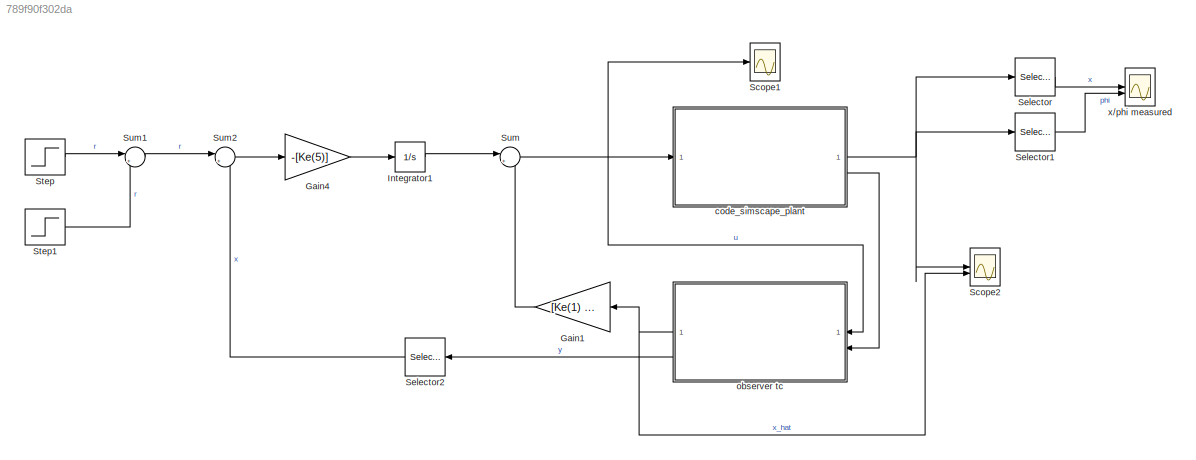
MODEL slx_789f90f302da
KIND model
CONFIG AbsTol = auto
CONFIG EnableMultiTasking = off
CONFIG FixedStep = auto
CONFIG MaxStep = ts
CONFIG MinStep = auto
CONFIG RelTol = 1e-3
CONFIG SampleTimeConstraint = Unconstrained
CONFIG SolverName = daessc
CONFIG StartTime = 0.0
CONFIG StopTime = simlength
BLOCK [Gain] Gain1
  Gain = [Ke(1) Ke(2) Ke(3) Ke(4)]
  Multiplication = Matrix(K*u)
  NameLocation = top
BLOCK [Gain] Gain4
  Gain = -[Ke(5)]
  NameLocation = top
BLOCK [Integrator] Integrator1
BLOCK [Scope] Scope1
  ActiveDisplayYMaximum = 1758.92471
  ActiveDisplayYMinimum = -664.55254
  DataLoggingVariableName = ScopeData1
  Floating = off
  GraphicalSettings = {"Style":{"BackgroundColor":[0.12941176470588237,0.12941176470588237,0.12941176470588237],"AxesColor":[0.07058823529411765,0.07058823529411765,0.07058823529411765],"LabelsColor":[0.8509803921568627,0.8509803921568627,0.8509803921568627],"PreserveColors":false,"Visible":[true],"LineStyle":["-"],"LineWidth":[3],"BarWidth":[0.9],"LineColor":["auto"],"LineFaceAlpha":[1],"LineEdgeAlpha":[1],"Marker":["...<+1935ch>
  MultipleDisplayCache = [{"MaxYLimMag":1758.92471,"MaxYLimReal":1758.92471,"MinYLimMag":0,"MinYLimReal":-664.55254,"PlotAsMagnitudePhase":false,"ShowGrid":true,"ShowLegend":true,"Title":"%<SignalLabel>","YLabel":""}]
  NumInputPorts = 1
  ScopeFrameLocation = window
  ShowLegend = on
  Visible = on
  WasSavedAsWebScope = on
  WindowPosition = [427.000000,396.000000,560.000000,420.000000,]
BLOCK [Scope] Scope2
  ActiveDisplayYMaximum = 1.87853
  ActiveDisplayYMinimum = -1.7334
  DataLoggingVariableName = ScopeData2
  Floating = off
  GraphicalSettings = {"GraphicalSettings":{"LegacySettings":true,"Style":{"AxesScalingProperties":{"ScaleAxesLimitsAtStop":false},"Style":{"AxesColor":"[0 0 0]","ChannelNames":["",""],"ColorOrder":"[1 1 0.0666666666666667;0.0745098039215686 0.623529411764706 1;1 0.411764705882353 0.16078431372549;0.392156862745098 0.831372549019608 0.0745098039215686;0.717647058823529 0.274509803921569 1;0.0588235294117647 1 1;1 0.074...<+511ch>
  LayoutDimensionsString = [2 1]
  MultipleDisplayCache = [{"MaxYLimMag":1.87853,"MaxYLimReal":1.87853,"MinYLimMag":0,"MinYLimReal":-1.7334,"PlotAsMagnitudePhase":false,"ShowGrid":true,"ShowLegend":true,"Title":"%<SignalLabel>","YLabel":""},{"MaxYLimMag":9.54603,"MaxYLimReal":1.87869,"MinYLimMag":0,"MinYLimReal":-1.73371,"PlotAsMagnitudePhase":false,"ShowGrid":true,"ShowLegend":true,"Title":"%<SignalLabel>","YLabel":""}]
  NumInputPorts = 2
  ShowLegend = on
  WasSavedAsWebScope = on
  WindowPosition = [1712 -310 1920 1095]
BLOCK [Selector] Selector
  IndexOptions = Index vector (dialog)
  Indices = 1
  InputPortWidth = 4
  OutputSizes = 1
BLOCK [Selector] Selector1
  IndexOptions = Index vector (dialog)
  Indices = 3
  InputPortWidth = 4
  OutputSizes = 1
BLOCK [Selector] Selector2
  IndexOptions = Index vector (dialog)
  Indices = 1
  InputPortWidth = 2
  NameLocation = top
  OutputSizes = 1
BLOCK [Step] Step
  SampleTime = 0
BLOCK [Step] Step1
  After = 2
  SampleTime = 0
  Time = 8
BLOCK [Sum] Sum
  Inputs = |+-
BLOCK [Sum] Sum1
  Inputs = |+-
BLOCK [Sum] Sum2
  Inputs = |+-
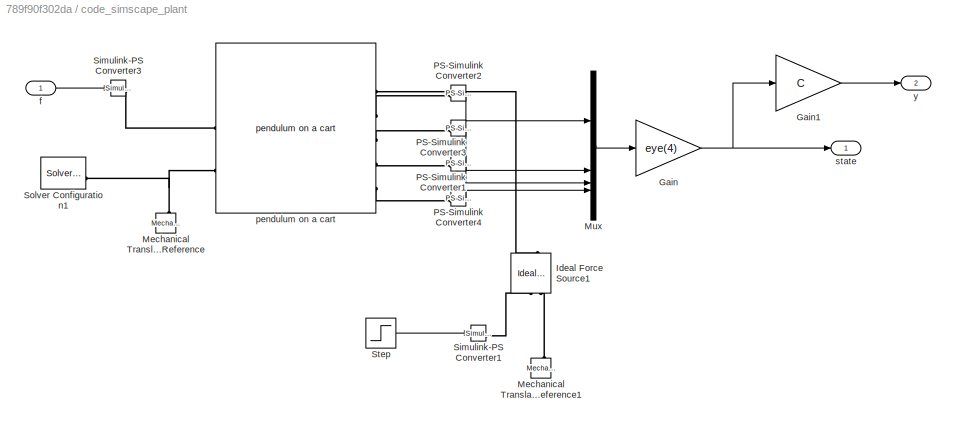
BLOCK [SubSystem] code_simscape_plant 
BLOCK [Gain] code_simscape_plant /Gain
  Gain = eye(4)
  Multiplication = Matrix(K*u)
BLOCK [Gain] code_simscape_plant /Gain1
  Gain = C
  Multiplication = Matrix(K*u)
BLOCK [Reference] code_simscape_plant /Ideal Force Source1  REF=fl_lib/Mechanical/Mechanical Sources/Ideal Force Source
  NameLocation = right
  SourceBlock = fl_lib/Mechanical/Mechanical Sources/Ideal Force Source
  SourceType = Ideal Force Source
BLOCK [Reference] code_simscape_plant /Mechanical Translational Reference  REF=fl_lib/Mechanical/Translational
Elements/Mechanical
Translational
Reference
  NameLocation = right
  SourceBlock = fl_lib/Mechanical/Translational\nElements/Mechanical\nTranslational\nReference
  SourceType = Mechanical\nTranslational\nReference
BLOCK [Reference] code_simscape_plant /Mechanical Translational Reference1  REF=fl_lib/Mechanical/Translational
Elements/Mechanical
Translational
Reference
  NameLocation = right
  SourceBlock = fl_lib/Mechanical/Translational\nElements/Mechanical\nTranslational\nReference
  SourceType = Mechanical\nTranslational\nReference
BLOCK [Mux] code_simscape_plant /Mux
  DisplayOption = bar
BLOCK [Reference] code_simscape_plant /PS-Simulink Converter1  REF=nesl_utility/PS-Simulink
Converter
  NameLocation = top
  SourceBlock = nesl_utility/PS-Simulink\nConverter
  SourceType = PS-Simulink\nConverter
BLOCK [Reference] code_simscape_plant /PS-Simulink Converter2  REF=nesl_utility/PS-Simulink
Converter
  SourceBlock = nesl_utility/PS-Simulink\nConverter
  SourceType = PS-Simulink\nConverter
BLOCK [Reference] code_simscape_plant /PS-Simulink Converter3  REF=nesl_utility/PS-Simulink
Converter
  NameLocation = top
  SourceBlock = nesl_utility/PS-Simulink\nConverter
  SourceType = PS-Simulink\nConverter
BLOCK [Reference] code_simscape_plant /PS-Simulink Converter4  REF=nesl_utility/PS-Simulink
Converter
  NameLocation = top
  SourceBlock = nesl_utility/PS-Simulink\nConverter
  SourceType = PS-Simulink\nConverter
BLOCK [Reference] code_simscape_plant /Simulink-PS Converter1  REF=nesl_utility/Simulink-PS
Converter
  SourceBlock = nesl_utility/Simulink-PS\nConverter
  SourceType = Simulink-PS\nConverter
BLOCK [Reference] code_simscape_plant /Simulink-PS Converter3  REF=nesl_utility/Simulink-PS
Converter
  SourceBlock = nesl_utility/Simulink-PS\nConverter
  SourceType = Simulink-PS\nConverter
BLOCK [Reference] code_simscape_plant /Solver Configuration1  REF=nesl_utility/Solver
Configuration
  SourceBlock = nesl_utility/Solver\nConfiguration
  SourceType = Solver\nConfiguration
BLOCK [Step] code_simscape_plant /Step
  After = 1000
  SampleTime = 0
  Time = 15
BLOCK [Inport] code_simscape_plant /f
BLOCK [Reference] code_simscape_plant /pendulum on a cart  REF=pendulum_on_a_cart_lib/pendulum on a cart
  SourceBlock = pendulum_on_a_cart_lib/pendulum on a cart
  SourceType = pendulum on a cart
BLOCK [Outport] code_simscape_plant /state
BLOCK [Outport] code_simscape_plant /y
  Port = 2
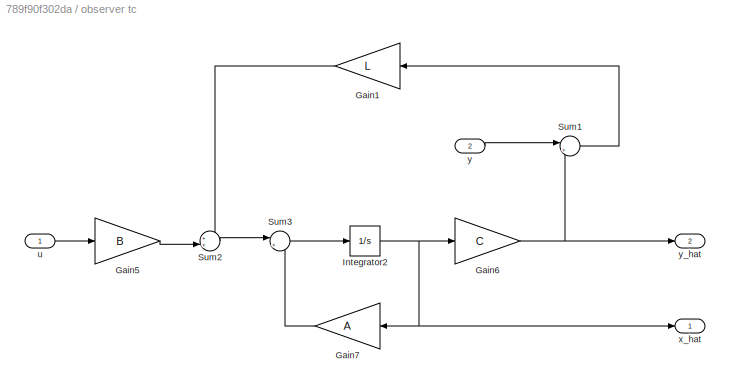
BLOCK [SubSystem] observer tc
  NameLocation = top
BLOCK [Gain] observer tc/Gain1
  Gain = L
  Multiplication = Matrix(K*u)
  NameLocation = top
BLOCK [Gain] observer tc/Gain5
  Gain = B
  Multiplication = Matrix(K*u)
BLOCK [Gain] observer tc/Gain6
  Gain = C
  Multiplication = Matrix(K*u)
BLOCK [Gain] observer tc/Gain7
  Gain = A
  Multiplication = Matrix(K*u)
BLOCK [Integrator] observer tc/Integrator2
  InitialCondition = [0 0 0 0]
BLOCK [Sum] observer tc/Sum1
  Inputs = |+-
BLOCK [Sum] observer tc/Sum2
  Inputs = ++|
BLOCK [Sum] observer tc/Sum3
  Inputs = |++
BLOCK [Inport] observer tc/u
BLOCK [Outport] observer tc/x_hat
BLOCK [Inport] observer tc/y
  Port = 2
BLOCK [Outport] observer tc/y_hat
  Port = 2
BLOCK [Scope] x//phi measured
  ActiveDisplayYMaximum = 1.51413
  ActiveDisplayYMinimum = -1.61915
  DataLoggingVariableName = ScopeData1
  Floating = off
  GraphicalSettings = {"Style":{"BackgroundColor":[0.12941176470588237,0.12941176470588237,0.12941176470588237],"AxesColor":[0.07058823529411765,0.07058823529411765,0.07058823529411765],"LabelsColor":[0.8509803921568627,0.8509803921568627,0.8509803921568627],"PreserveColors":false,"Visible":[true,true],"LineStyle":["-","-"],"LineWidth":[3,3],"BarWidth":[0.9,0.9],"LineColor":["auto",[1,1,0.06666666666666667]],"LineFaceA...<+2309ch>
  LayoutDimensionsString = [2 1]
  MultipleDisplayCache = [{"MaxYLimMag":1.61915,"MaxYLimReal":1.51413,"MinYLimMag":0,"MinYLimReal":-1.61915,"PlotAsMagnitudePhase":false,"ShowGrid":true,"ShowLegend":true,"Title":"%<SignalLabel>","YLabel":""},{"MaxYLimMag":9.54603,"MaxYLimReal":0.35233,"MinYLimMag":0,"MinYLimReal":-0.2594,"PlotAsMagnitudePhase":false,"ShowGrid":true,"ShowLegend":true,"Title":"%<SignalLabel>","YLabel":""}]
  NumInputPorts = 2
  ScopeFrameLocation = window
  ShowLegend = on
  Visible = on
  WasSavedAsWebScope = on
  WindowPosition = [1157.000000,503.000000,560.000000,420.000000,]
LINE Gain1:1 -> Sum:2
LINE Gain4:1 -> Integrator1:1
LINE Integrator1:1 -> Sum:1
LINE Selector1:1 -> x//phi measured:2
LINE Selector2:1 -> Sum2:2
LINE Selector:1 -> x//phi measured:1
LINE Step1:1 -> Sum1:2
LINE Step:1 -> Sum1:1
LINE Sum1:1 -> Sum2:1
LINE Sum2:1 -> Gain4:1
NET Sum:1 -> Scope1:1, code_simscape_plant :1, observer tc:1
LINE code_simscape_plant /Gain1:1 -> code_simscape_plant /y:1
NET code_simscape_plant /Gain:1 -> code_simscape_plant /Gain1:1, code_simscape_plant /state:1
LINE code_simscape_plant /Mux:1 -> code_simscape_plant /Gain:1
LINE code_simscape_plant /PS-Simulink Converter1:1 -> code_simscape_plant /Mux:3
LINE code_simscape_plant /PS-Simulink Converter2:1 -> code_simscape_plant /Mux:1
LINE code_simscape_plant /PS-Simulink Converter3:1 -> code_simscape_plant /Mux:2
LINE code_simscape_plant /PS-Simulink Converter4:1 -> code_simscape_plant /Mux:4
LINE code_simscape_plant /Step:1 -> code_simscape_plant /Simulink-PS Converter1:1
LINE code_simscape_plant /f:1 -> code_simscape_plant /Simulink-PS Converter3:1
NET code_simscape_plant :1 -> Scope2:1, Selector1:1, Selector:1
LINE code_simscape_plant :2 -> observer tc:2
LINE observer tc/Gain1:1 -> observer tc/Sum2:1
LINE observer tc/Gain5:1 -> observer tc/Sum2:2
NET observer tc/Gain6:1 -> observer tc/Sum1:2, observer tc/y_hat:1
LINE observer tc/Gain7:1 -> observer tc/Sum3:2
NET observer tc/Integrator2:1 -> observer tc/Gain6:1, observer tc/Gain7:1, observer tc/x_hat:1
LINE observer tc/Sum1:1 -> observer tc/Gain1:1
LINE observer tc/Sum2:1 -> observer tc/Sum3:1
LINE observer tc/Sum3:1 -> observer tc/Integrator2:1
LINE observer tc/u:1 -> observer tc/Gain5:1
LINE observer tc/y:1 -> observer tc/Sum1:1
NET observer tc:1 -> Gain1:1, Scope2:2
LINE observer tc:2 -> Selector2:1
PLINE code_simscape_plant /Ideal Force Source1:LConn1 -- code_simscape_plant /pendulum on a cart:RConn1
PLINE code_simscape_plant /Ideal Force Source1:RConn1 -- code_simscape_plant /Simulink-PS Converter1:RConn1
PLINE code_simscape_plant /Ideal Force Source1:RConn2 -- code_simscape_plant /Mechanical Translational Reference1:LConn1
PNET net1: code_simscape_plant /Mechanical Translational Reference:LConn1 -- code_simscape_plant /Solver Configuration1:RConn1 -- code_simscape_plant /pendulum on a cart:LConn2
PLINE code_simscape_plant /PS-Simulink Converter1:LConn1 -- code_simscape_plant /pendulum on a cart:RConn4
PLINE code_simscape_plant /PS-Simulink Converter2:LConn1 -- code_simscape_plant /pendulum on a cart:RConn2
PLINE code_simscape_plant /PS-Simulink Converter3:LConn1 -- code_simscape_plant /pendulum on a cart:RConn3
PLINE code_simscape_plant /PS-Simulink Converter4:LConn1 -- code_simscape_plant /pendulum on a cart:RConn5
PLINE code_simscape_plant /Simulink-PS Converter3:RConn1 -- code_simscape_plant /pendulum on a cart:LConn1
note: NET lines group one-source signal fan-out (src -> all destinations, sorted); 1:1 wires keep LINE; PNET lines group multi-terminal physical nets as a canonical sorted terminal list (undirected conserving connections); 2-terminal nets keep the pairwise PLINE form
